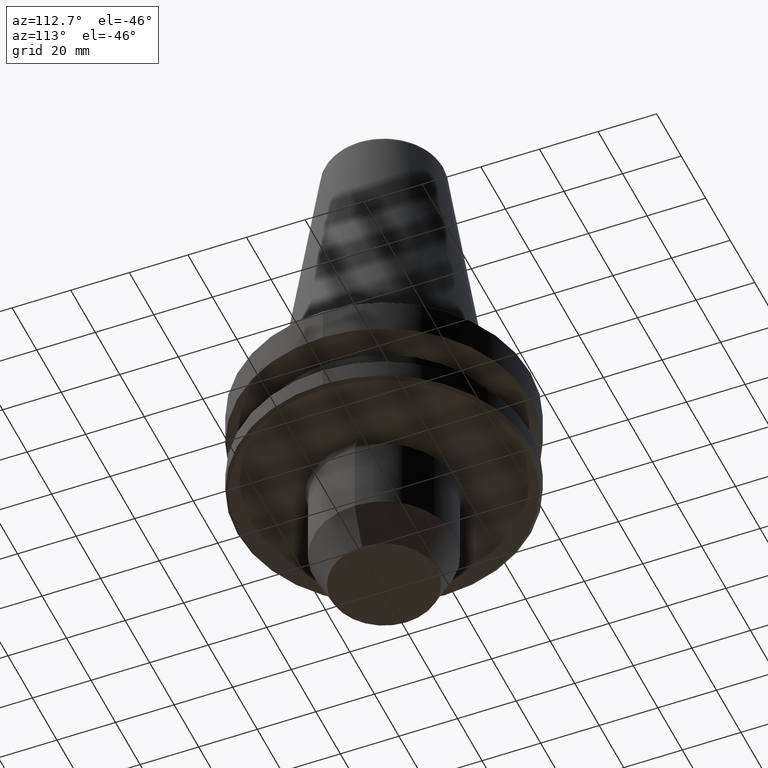
[diagram: clean part render]
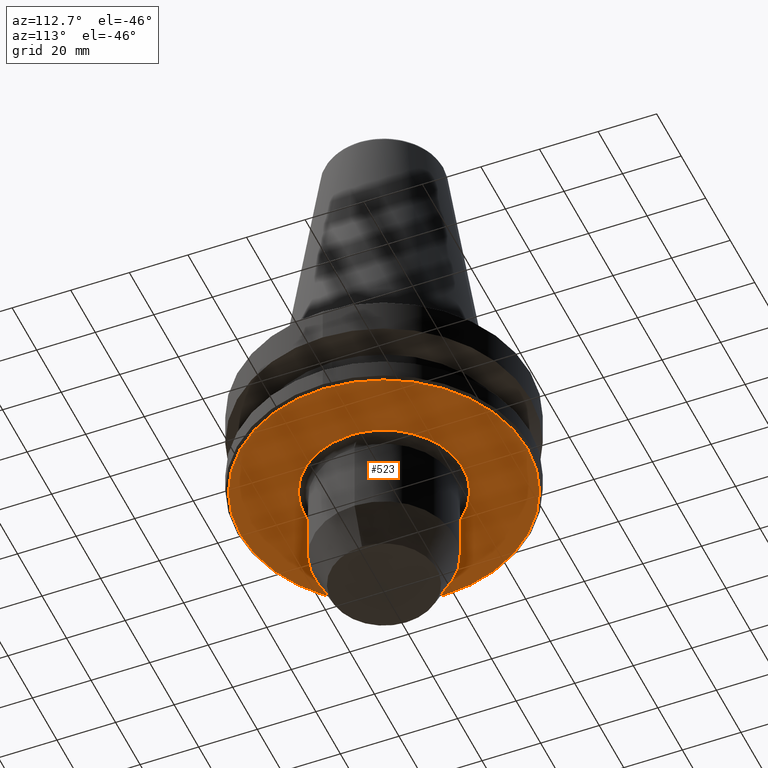
[diagram: same view with one face highlighted and labeled with its STEP entity id]
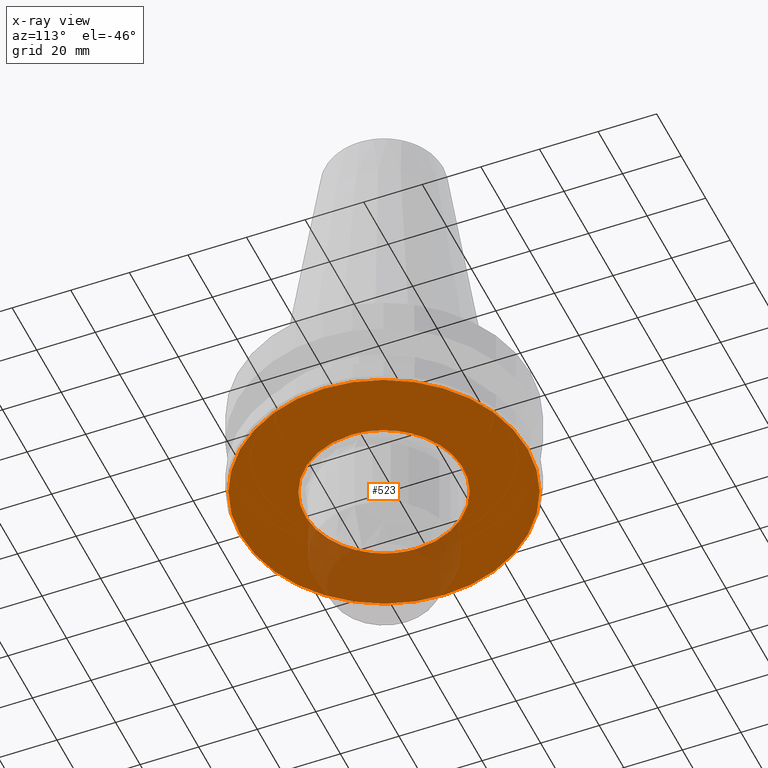
[diagram: x-ray of the same camera — body ghosted, the highlighted face saturated]
A machine part, auxiliary view. The second image highlights one B-rep face of the part: STEP entity #523.
The next image is the same camera in x-ray: the body ghosted, the highlighted face saturated — about 21% of this face is hidden behind the body in this view.
In plain terms, the highlighted planar face has unit normal (0, 0, 1).
Its self-contained STEP definition (entity closure, byte-faithful):
#35 =( BOUNDED_CURVE ( )  B_SPLINE_CURVE ( 3, ( #942, #473, #987, #1055 ),
 .UNSPECIFIED., .F., .F. ) 
 B_SPLINE_CURVE_WITH_KNOTS ( ( 4, 4 ),
 ( 0.0000000000000000000, 1.000000000000000000 ),
 .UNSPECIFIED. ) 
 CURVE ( )  GEOMETRIC_REPRESENTATION_ITEM ( )  RATIONAL_B_SPLINE_CURVE ( ( 1.000000000000000000, 0.3333333333333333700, 0.3333333333333333700, 1.000000000000000000 ) ) 
 REPRESENTATION_ITEM ( '' )  );
#48 = EDGE_CURVE ( 'NONE', #878, #750, #35, .T. ) ;
#127 = AXIS2_PLACEMENT_3D ( 'NONE', #940, #280, #1063 ) ;
#188 = ORIENTED_EDGE ( 'NONE', *, *, #48, .F. ) ;
#266 = EDGE_CURVE ( 'NONE', #828, #1082, #682, .T. ) ;
#280 = DIRECTION ( 'NONE',  ( 0.0000000000000000000, -0.0000000000000000000, 1.000000000000000000 ) ) ;
#419 = EDGE_LOOP ( 'NONE', ( #188, #935 ) ) ;
#431 = ORIENTED_EDGE ( 'NONE', *, *, #1083, .F. ) ;
#473 = CARTESIAN_POINT ( 'NONE',  ( 27.00000000000000400, -53.99999999999999300, -38.00000000000000700 ) ) ;
#523 = ADVANCED_FACE ( 'NONE', ( #1311, #945 ), #1342, .F. ) ;
#682 = CIRCLE ( 'NONE', #127, 49.00000000000000000 ) ;
#725 = EDGE_CURVE ( 'NONE', #750, #878, #971, .T. ) ;
#729 = DIRECTION ( 'NONE',  ( 1.000000000000000000, 0.0000000000000000000, 0.0000000000000000000 ) ) ;
#735 = DIRECTION ( 'NONE',  ( 0.0000000000000000000, -0.0000000000000000000, 1.000000000000000000 ) ) ;
#744 = CARTESIAN_POINT ( 'NONE',  ( 0.0000000000000000000, 0.0000000000000000000, -38.00000000000002100 ) ) ;
#750 = VERTEX_POINT ( 'NONE', #1091 ) ;
#752 = CARTESIAN_POINT ( 'NONE',  ( 49.00000000000000000, 0.0000000000000000000, -38.00000000000002100 ) ) ;
#828 = VERTEX_POINT ( 'NONE', #955 ) ;
#878 = VERTEX_POINT ( 'NONE', #884 ) ;
#884 = CARTESIAN_POINT ( 'NONE',  ( 27.00000000000000400, 0.0000000000000000000, -38.00000000000000700 ) ) ;
#935 = ORIENTED_EDGE ( 'NONE', *, *, #725, .F. ) ;
#940 = CARTESIAN_POINT ( 'NONE',  ( 0.0000000000000000000, 0.0000000000000000000, -38.00000000000002100 ) ) ;
#942 = CARTESIAN_POINT ( 'NONE',  ( 27.00000000000000400, 0.0000000000000000000, -38.00000000000000700 ) ) ;
#945 = FACE_BOUND ( 'NONE', #419, .T. ) ;
#955 = CARTESIAN_POINT ( 'NONE',  ( -49.00000000000000000, 6.062001655779398500E-015, -38.00000000000002100 ) ) ;
#971 =( BOUNDED_CURVE ( )  B_SPLINE_CURVE ( 3, ( #1070, #1044, #1041, #1120 ),
 .UNSPECIFIED., .F., .T. ) 
 B_SPLINE_CURVE_WITH_KNOTS ( ( 4, 4 ),
 ( 0.0000000000000000000, 1.000000000000000000 ),
 .UNSPECIFIED. ) 
 CURVE ( )  GEOMETRIC_REPRESENTATION_ITEM ( )  RATIONAL_B_SPLINE_CURVE ( ( 1.000000000000000000, 0.3333333333333333700, 0.3333333333333333700, 1.000000000000000000 ) ) 
 REPRESENTATION_ITEM ( '' )  );
#987 = CARTESIAN_POINT ( 'NONE',  ( -27.00000000000000700, -53.99999999999999300, -38.00000000000000700 ) ) ;
#992 = CIRCLE ( 'NONE', #1196, 49.00000000000000000 ) ;
#1041 = CARTESIAN_POINT ( 'NONE',  ( 27.00000000000000400, 53.99999999999999300, -38.00000000000000700 ) ) ;
#1044 = CARTESIAN_POINT ( 'NONE',  ( -26.99999999999999600, 53.99999999999999300, -38.00000000000000700 ) ) ;
#1055 = CARTESIAN_POINT ( 'NONE',  ( -27.00000000000000400, 1.983927814618711800E-015, -38.00000000000000700 ) ) ;
#1063 = DIRECTION ( 'NONE',  ( 1.000000000000000000, 0.0000000000000000000, 0.0000000000000000000 ) ) ;
#1070 = CARTESIAN_POINT ( 'NONE',  ( -27.00000000000000400, 1.983927814618711800E-015, -38.00000000000000700 ) ) ;
#1082 = VERTEX_POINT ( 'NONE', #752 ) ;
#1083 = EDGE_CURVE ( 'NONE', #1082, #828, #992, .T. ) ;
#1091 = CARTESIAN_POINT ( 'NONE',  ( -27.00000000000000400, 1.983927814618711800E-015, -38.00000000000000700 ) ) ;
#1116 = ORIENTED_EDGE ( 'NONE', *, *, #266, .F. ) ;
#1120 = CARTESIAN_POINT ( 'NONE',  ( 27.00000000000000400, 0.0000000000000000000, -38.00000000000000700 ) ) ;
#1196 = AXIS2_PLACEMENT_3D ( 'NONE', #744, #735, #729 ) ;
#1238 = DIRECTION ( 'NONE',  ( 0.0000000000000000000, 0.0000000000000000000, 1.000000000000000000 ) ) ;
#1281 = EDGE_LOOP ( 'NONE', ( #431, #1116 ) ) ;
#1311 = FACE_OUTER_BOUND ( 'NONE', #1281, .T. ) ;
#1316 = DIRECTION ( 'NONE',  ( 1.000000000000000000, 0.0000000000000000000, -0.0000000000000000000 ) ) ;
#1319 = CARTESIAN_POINT ( 'NONE',  ( 0.0000000000000000000, 49.00000000000000000, -38.00000000000000700 ) ) ;
#1342 = PLANE ( 'NONE',  #1359 ) ;
#1359 = AXIS2_PLACEMENT_3D ( 'NONE', #1319, #1238, #1316 ) ;